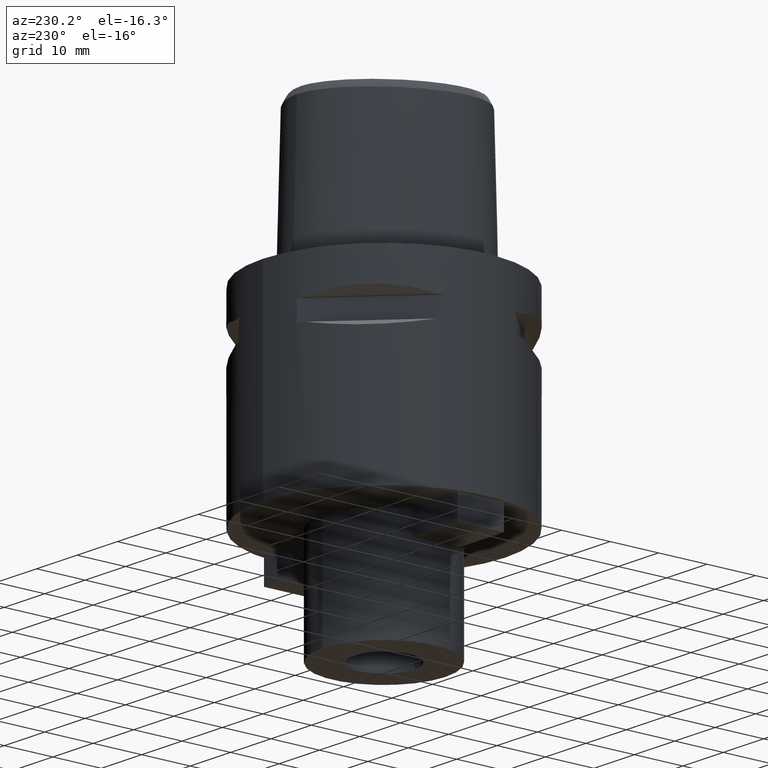
[diagram: clean part render]
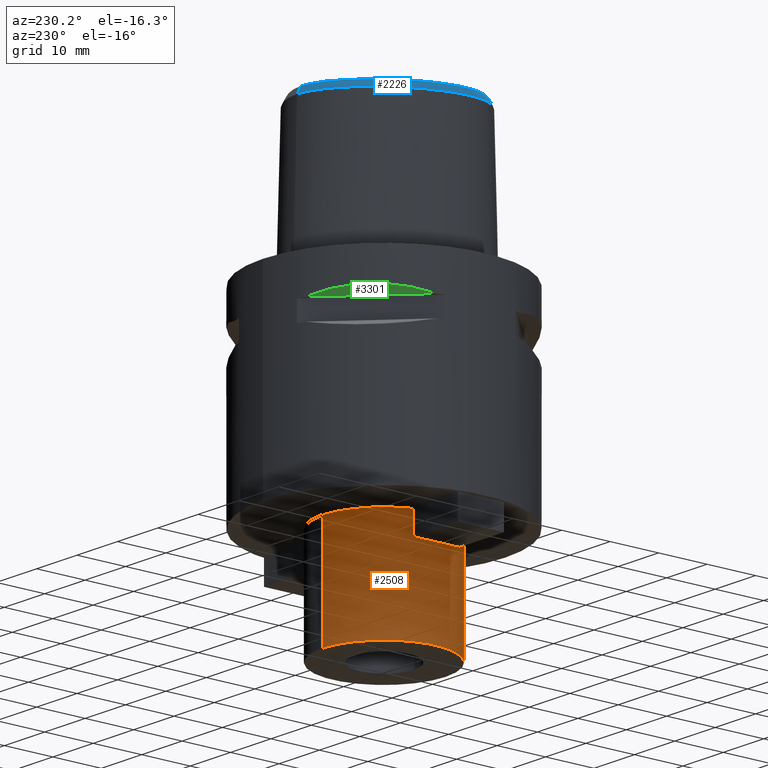
[diagram: same view with three faces highlighted in distinct colors, each labeled with its STEP entity id]
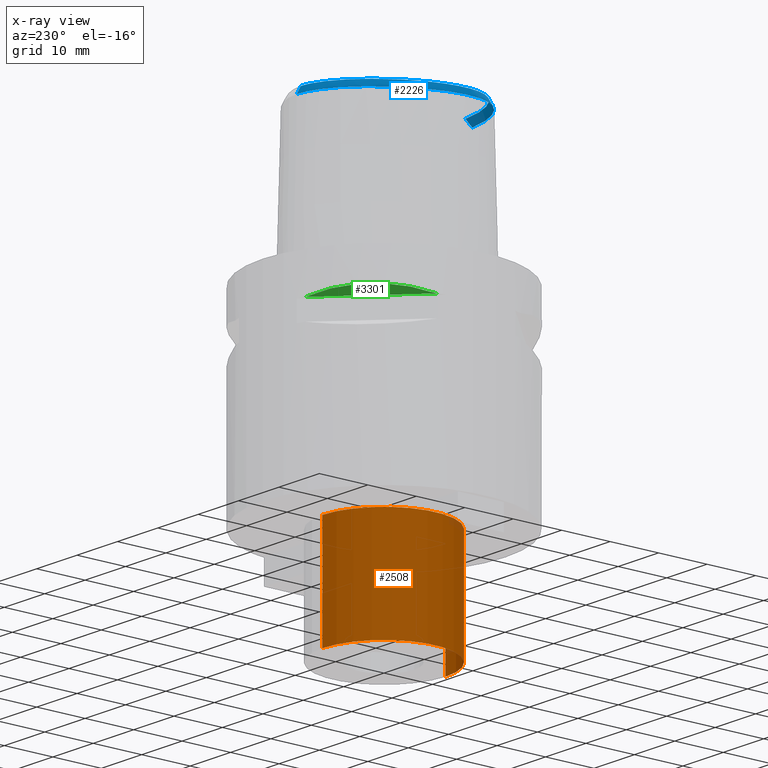
[diagram: x-ray of the same camera — body ghosted, the three highlighted faces saturated]
A machine part, auxiliary view with three faces highlighted in distinct colors.
The next image is the same camera in x-ray (body ghosted, the three faces saturated) — at least one of them is partly hidden behind the body in this view.
Their STEP definitions:

[orange] entity #2508 — the highlighted cylindrical surface (partial cylindrical patch) has radius 12.7 mm, axis along (0, 0, -1).
#522=CARTESIAN_POINT('',(0.E0,0.E0,-4.E1));
#523=DIRECTION('',(0.E0,0.E0,-1.E0));
#524=DIRECTION('',(0.E0,-1.E0,0.E0));
#525=AXIS2_PLACEMENT_3D('',#522,#523,#524);
#566=DIRECTION('',(0.E0,0.E0,-1.E0));
#567=VECTOR('',#566,2.2E1);
#568=CARTESIAN_POINT('',(0.E0,-1.27E1,-4.E1));
#569=LINE('',#568,#567);
#573=DIRECTION('',(0.E0,0.E0,-1.E0));
#574=VECTOR('',#573,2.2E1);
#575=CARTESIAN_POINT('',(0.E0,1.27E1,-4.E1));
#576=LINE('',#575,#574);
#588=CARTESIAN_POINT('',(0.E0,0.E0,-6.2E1));
#589=DIRECTION('',(0.E0,0.E0,1.E0));
#590=DIRECTION('',(0.E0,1.E0,0.E0));
#591=AXIS2_PLACEMENT_3D('',#588,#589,#590);
#1624=CARTESIAN_POINT('',(0.E0,-1.27E1,-4.E1));
#1625=CARTESIAN_POINT('',(0.E0,1.27E1,-4.E1));
#1626=VERTEX_POINT('',#1624);
#1627=VERTEX_POINT('',#1625);
#1644=CARTESIAN_POINT('',(0.E0,1.27E1,-6.2E1));
#1645=VERTEX_POINT('',#1644);
#1646=CARTESIAN_POINT('',(0.E0,-1.27E1,-6.2E1));
#1647=VERTEX_POINT('',#1646);
#2494=CARTESIAN_POINT('',(0.E0,0.E0,3.1E0));
#2495=DIRECTION('',(0.E0,0.E0,-1.E0));
#2496=DIRECTION('',(0.E0,-1.E0,0.E0));
#2497=AXIS2_PLACEMENT_3D('',#2494,#2495,#2496);
#2498=CYLINDRICAL_SURFACE('',#2497,1.27E1);
#2500=ORIENTED_EDGE('',*,*,#2499,.F.);
#2501=ORIENTED_EDGE('',*,*,#2467,.F.);
#2503=ORIENTED_EDGE('',*,*,#2502,.T.);
#2505=ORIENTED_EDGE('',*,*,#2504,.F.);
#2506=EDGE_LOOP('',(#2500,#2501,#2503,#2505));
#2507=FACE_OUTER_BOUND('',#2506,.F.);
#526=CIRCLE('',#525,1.27E1);
#592=CIRCLE('',#591,1.27E1);
#2467=EDGE_CURVE('',#1626,#1627,#526,.T.);
#2499=EDGE_CURVE('',#1627,#1645,#576,.T.);
#2502=EDGE_CURVE('',#1626,#1647,#569,.T.);
#2504=EDGE_CURVE('',#1645,#1647,#592,.T.);
#2508=ADVANCED_FACE('',(#2507),#2498,.T.);

[blue] entity #2226 — the highlighted face is a freeform B-spline surface patch.
#26=CARTESIAN_POINT('',(-2.406542353495E0,-1.480491723099E1,3.E1));
#27=CARTESIAN_POINT('',(-3.077877050545E0,-1.474412987460E1,3.E1));
#28=CARTESIAN_POINT('',(-4.346409671364E0,-1.457798202942E1,3.E1));
#29=CARTESIAN_POINT('',(-6.058080451681E0,-1.422197748778E1,3.E1));
#30=CARTESIAN_POINT('',(-7.497387844034E0,-1.381345399352E1,3.E1));
#31=CARTESIAN_POINT('',(-8.761918041401E0,-1.336117485593E1,3.E1));
#32=CARTESIAN_POINT('',(-9.910791545686E0,-1.285742767726E1,3.E1));
#33=CARTESIAN_POINT('',(-1.095803032272E1,-1.230298477491E1,3.E1));
#34=CARTESIAN_POINT('',(-1.191588550871E1,-1.169410889211E1,3.E1));
#35=CARTESIAN_POINT('',(-1.277871106677E1,-1.103307606468E1,3.E1));
#36=CARTESIAN_POINT('',(-1.351535275290E1,-1.034995031562E1,3.E1));
#37=CARTESIAN_POINT('',(-1.412991599111E1,-9.658017847749E0,3.E1));
#38=CARTESIAN_POINT('',(-1.463490572554E1,-8.962255318783E0,3.E1));
#39=CARTESIAN_POINT('',(-1.505180936336E1,-8.246223089930E0,3.E1));
#40=CARTESIAN_POINT('',(-1.540600817102E1,-7.466368653502E0,3.E1));
#41=CARTESIAN_POINT('',(-1.570109880252E1,-6.599287866008E0,3.E1));
#42=CARTESIAN_POINT('',(-1.593036326365E1,-5.627615350583E0,3.E1));
#43=CARTESIAN_POINT('',(-1.607900681505E1,-4.545844900234E0,3.E1));
#44=CARTESIAN_POINT('',(-1.613323717478E1,-3.416327187463E0,3.E1));
#45=CARTESIAN_POINT('',(-1.609622689745E1,-2.238207870912E0,3.E1));
#46=CARTESIAN_POINT('',(-1.596495895031E1,-9.970489340004E-1,3.E1));
#47=CARTESIAN_POINT('',(-1.573173242173E1,3.200539177967E-1,3.E1));
#48=CARTESIAN_POINT('',(-1.537490857223E1,1.760614091821E0,3.E1));
#49=CARTESIAN_POINT('',(-1.484615843465E1,3.396086717143E0,3.E1));
#50=CARTESIAN_POINT('',(-1.410656551523E1,5.201184011511E0,3.E1));
#51=CARTESIAN_POINT('',(-1.320217643696E1,6.999185940068E0,3.E1));
#52=CARTESIAN_POINT('',(-1.216232852075E1,8.730380125291E0,3.E1));
#53=CARTESIAN_POINT('',(-1.100018175405E1,1.036818300599E1,3.E1));
#54=CARTESIAN_POINT('',(-9.812117364274E0,1.179373903623E1,3.E1));
#55=CARTESIAN_POINT('',(-8.705627354046E0,1.293949473693E1,3.E1));
#56=CARTESIAN_POINT('',(-7.668856698037E0,1.387725456546E1,3.E1));
#57=CARTESIAN_POINT('',(-6.652804324409E0,1.467767715912E1,3.E1));
#58=CARTESIAN_POINT('',(-5.640984391123E0,1.536270269161E1,3.E1));
#59=CARTESIAN_POINT('',(-4.635084761944E0,1.593641245741E1,3.E1));
#60=CARTESIAN_POINT('',(-3.635341362188E0,1.640141196123E1,3.E1));
#61=CARTESIAN_POINT('',(-2.654914976228E0,1.675339404858E1,3.E1));
#62=CARTESIAN_POINT('',(-1.724445209999E0,1.698991710282E1,3.E1));
#63=CARTESIAN_POINT('',(-8.463595404158E-1,1.712413727407E1,3.E1));
#64=CARTESIAN_POINT('',(-2.782593634261E-1,1.715328888648E1,3.E1));
#65=CARTESIAN_POINT('',(-6.301949014215E-11,1.715328888648E1,3.E1));
#184=CARTESIAN_POINT('',(-2.406542353495E0,-1.480491723099E1,3.E1));
#185=CARTESIAN_POINT('',(-2.503413520705E0,-1.487788077640E1,2.985469957934E1));
#186=CARTESIAN_POINT('',(-2.688577477063E0,-1.503126525481E1,2.955056621377E1));
#187=CARTESIAN_POINT('',(-2.938927792076E0,-1.527883673709E1,2.906436153620E1));
#188=CARTESIAN_POINT('',(-3.094810231202E0,-1.546289540087E1,2.870661666782E1));
#189=CARTESIAN_POINT('',(-3.168920966623E0,-1.555911077539E1,2.852071192347E1));
#194=CARTESIAN_POINT('',(-3.168920966623E0,-1.555911077539E1,2.852071192347E1));
#195=CARTESIAN_POINT('',(-3.834802460624E0,-1.548149980056E1,2.852068259488E1));
#196=CARTESIAN_POINT('',(-5.098425956189E0,-1.528322129554E1,2.852072501408E1));
#197=CARTESIAN_POINT('',(-6.763182995587E0,-1.489564897571E1,2.852071506774E1));
#198=CARTESIAN_POINT('',(-8.199119874279E0,-1.445421074434E1,2.852072810493E1));
#199=CARTESIAN_POINT('',(-9.479985468784E0,-1.396290448038E1,2.852070886718E1));
#200=CARTESIAN_POINT('',(-1.065124091219E1,-1.341540490560E1,2.852072280462E1));
#201=CARTESIAN_POINT('',(-1.172848667658E1,-1.280901218796E1,2.852071529772E1));
#202=CARTESIAN_POINT('',(-1.271909405023E1,-1.213801322077E1,2.852072140095E1));
#203=CARTESIAN_POINT('',(-1.358663337046E1,-1.142906425604E1,2.852072076692E1));
#204=CARTESIAN_POINT('',(-1.432089152183E1,-1.070578211752E1,2.852072514129E1));
#205=CARTESIAN_POINT('',(-1.493679737650E1,-9.972043940927E0,2.852069036478E1));
#206=CARTESIAN_POINT('',(-1.544989155915E1,-9.225767726928E0,2.852073069360E1));
#207=CARTESIAN_POINT('',(-1.587932340565E1,-8.446243141603E0,2.852072616255E1));
#208=CARTESIAN_POINT('',(-1.624433460780E1,-7.597213457578E0,2.852070981507E1));
#209=CARTESIAN_POINT('',(-1.654527331392E1,-6.658898663135E0,2.852071596628E1));
#210=CARTESIAN_POINT('',(-1.677397756700E1,-5.620521684950E0,2.852072615388E1));
#211=CARTESIAN_POINT('',(-1.691819478479E1,-4.470824263012E0,2.852071639408E1));
#212=CARTESIAN_POINT('',(-1.696344648152E1,-3.257045715356E0,2.852071461131E1));
#213=CARTESIAN_POINT('',(-1.691062909386E1,-2.002801343658E0,2.852072363674E1));
#214=CARTESIAN_POINT('',(-1.675808310329E1,-6.888008413610E-1,
2.852071380688E1));
#215=CARTESIAN_POINT('',(-1.649855299857E1,6.977720721714E-1,2.852071998812E1));
#216=CARTESIAN_POINT('',(-1.610426973207E1,2.225424761353E0,2.852072063483E1));
#217=CARTESIAN_POINT('',(-1.552435244965E1,3.951979169115E0,2.852070441601E1));
#218=CARTESIAN_POINT('',(-1.474396806374E1,5.797556469969E0,2.852072799712E1));
#219=CARTESIAN_POINT('',(-1.380297306136E1,7.624260361627E0,2.852068650932E1));
#220=CARTESIAN_POINT('',(-1.272768153764E1,9.378428865776E0,2.852072747734E1));
#221=CARTESIAN_POINT('',(-1.154002983844E1,1.102437389658E1,2.852071909408E1));
#222=CARTESIAN_POINT('',(-1.032415640403E1,1.246392477114E1,2.852070864766E1));
#223=CARTESIAN_POINT('',(-9.178546848239E0,1.363544536689E1,2.852071992151E1));
#224=CARTESIAN_POINT('',(-8.100503338057E0,1.459779885486E1,2.852071927444E1));
#225=CARTESIAN_POINT('',(-7.037168641851E0,1.542369324304E1,2.852072717459E1));
#226=CARTESIAN_POINT('',(-5.970741987586E0,1.613437390494E1,2.852071577844E1));
#227=CARTESIAN_POINT('',(-4.895546031542E0,1.673553791691E1,2.852072334992E1));
#228=CARTESIAN_POINT('',(-3.827360564547E0,1.721887992541E1,2.852071733764E1));
#229=CARTESIAN_POINT('',(-2.794448666689E0,1.757718790997E1,2.852071374997E1));
#230=CARTESIAN_POINT('',(-1.819188312334E0,1.781665288435E1,2.852077149501E1));
#231=CARTESIAN_POINT('',(-8.849236946526E-1,1.795330503534E1,2.852059165093E1));
#232=CARTESIAN_POINT('',(-2.965007077566E-1,1.798202997910E1,2.852071728568E1));
#233=CARTESIAN_POINT('',(-2.785048470627E-11,1.798202997910E1,
2.852071728569E1));
#238=DIRECTION('',(-2.074122626242E-11,-4.887572537803E-1,8.724198226067E-1));
#239=VECTOR('',#238,1.695608783729E0);
#240=CARTESIAN_POINT('',(-2.785048470627E-11,1.798202997910E1,
2.852071728569E1));
#241=LINE('',#240,#239);
#245=CARTESIAN_POINT('',(-3.168920966623E0,-1.555911077539E1,2.852071192347E1));
#1543=CARTESIAN_POINT('',(-2.406542353497E0,-1.480491723099E1,3.E1));
#1545=VERTEX_POINT('',#1543);
#1546=VERTEX_POINT('',#65);
#1555=VERTEX_POINT('',#245);
#1556=CARTESIAN_POINT('',(-2.785048470627E-11,1.798202997910E1,
2.852071728569E1));
#1557=VERTEX_POINT('',#1556);
#1994=CARTESIAN_POINT('',(4.596753303530E-1,1.707290873920E1,3.012174121022E1));
#1995=CARTESIAN_POINT('',(4.774139178673E-1,1.739413187838E1,2.954746463267E1));
#1996=CARTESIAN_POINT('',(4.951525053815E-1,1.771535501756E1,2.897318805512E1));
#1997=CARTESIAN_POINT('',(5.128910928957E-1,1.803657815674E1,2.839891147757E1));
#1998=CARTESIAN_POINT('',(3.026153698089E-1,1.708096174965E1,3.012174118422E1));
#1999=CARTESIAN_POINT('',(3.144960619652E-1,1.740252275242E1,2.954746472932E1));
#2000=CARTESIAN_POINT('',(3.263767541215E-1,1.772408375520E1,2.897318827442E1));
#2001=CARTESIAN_POINT('',(3.382574462778E-1,1.804564475797E1,2.839891181952E1));
#2002=CARTESIAN_POINT('',(-4.069228935508E-2,1.709027162535E1,
3.012174116556E1));
#2003=CARTESIAN_POINT('',(-4.220029757135E-2,1.741220924809E1,
2.954746479873E1));
#2004=CARTESIAN_POINT('',(-4.370830578761E-2,1.773414687083E1,
2.897318843190E1));
#2005=CARTESIAN_POINT('',(-4.521631400387E-2,1.805608449357E1,
2.839891206507E1));
#2006=CARTESIAN_POINT('',(-5.631291041104E-1,1.707204226745E1,
3.012174120212E1));
#2007=CARTESIAN_POINT('',(-5.856382512652E-1,1.739324244317E1,
2.954746466283E1));
#2008=CARTESIAN_POINT('',(-6.081473984200E-1,1.771444261889E1,
2.897318812355E1));
#2009=CARTESIAN_POINT('',(-6.306565455748E-1,1.803564279461E1,
2.839891158427E1));
#2010=CARTESIAN_POINT('',(-1.150697112783E0,1.701102340343E1,3.012174120694E1));
#2011=CARTESIAN_POINT('',(-1.195295051208E0,1.732989938115E1,2.954746464487E1));
#2012=CARTESIAN_POINT('',(-1.239892989634E0,1.764877535887E1,2.897318808279E1));
#2013=CARTESIAN_POINT('',(-1.284490928059E0,1.796765133659E1,2.839891152072E1));
#2014=CARTESIAN_POINT('',(-1.758849615155E0,1.690516310659E1,3.012174116139E1));
#2015=CARTESIAN_POINT('',(-1.825036346383E0,1.722025945916E1,2.954746481422E1));
#2016=CARTESIAN_POINT('',(-1.891223077611E0,1.753535581172E1,2.897318846705E1));
#2017=CARTESIAN_POINT('',(-1.957409808839E0,1.785045216428E1,2.839891211989E1));
#2018=CARTESIAN_POINT('',(-2.393174015140E0,1.675020975820E1,3.012174120002E1));
#2019=CARTESIAN_POINT('',(-2.480286309887E0,1.706016471068E1,2.954746467062E1));
#2020=CARTESIAN_POINT('',(-2.567398604634E0,1.737011966316E1,2.897318814123E1));
#2021=CARTESIAN_POINT('',(-2.654510899380E0,1.768007461564E1,2.839891161184E1));
#2022=CARTESIAN_POINT('',(-3.054436895721E0,1.654136122386E1,3.012174126222E1));
#2023=CARTESIAN_POINT('',(-3.161711073770E0,1.684491932724E1,2.954746443944E1));
#2024=CARTESIAN_POINT('',(-3.268985251818E0,1.714847743063E1,2.897318761665E1));
#2025=CARTESIAN_POINT('',(-3.376259429867E0,1.745203553402E1,2.839891079387E1));
#2026=CARTESIAN_POINT('',(-3.745070615544E0,1.627276273461E1,3.012174111493E1));
#2027=CARTESIAN_POINT('',(-3.871679354115E0,1.656876825589E1,2.954746498689E1));
#2028=CARTESIAN_POINT('',(-3.998288092687E0,1.686477377718E1,2.897318885884E1));
#2029=CARTESIAN_POINT('',(-4.124896831258E0,1.716077929846E1,2.839891273079E1));
#2030=CARTESIAN_POINT('',(-4.467927516314E0,1.593721150381E1,3.012174080170E1));
#2031=CARTESIAN_POINT('',(-4.612901984289E0,1.622465683992E1,2.954746615123E1));
#2032=CARTESIAN_POINT('',(-4.757876452263E0,1.651210217603E1,2.897319150076E1));
#2033=CARTESIAN_POINT('',(-4.902850920238E0,1.679954751214E1,2.839891685028E1));
#2034=CARTESIAN_POINT('',(-5.223450049373E0,1.552756331095E1,3.012174070623E1));
#2035=CARTESIAN_POINT('',(-5.385821204270E0,1.580554184873E1,2.954746650612E1));
#2036=CARTESIAN_POINT('',(-5.548192359167E0,1.608352038650E1,2.897319230601E1));
#2037=CARTESIAN_POINT('',(-5.710563514063E0,1.636149892428E1,2.839891810590E1));
#2038=CARTESIAN_POINT('',(-6.009473619387E0,1.503725066274E1,3.012174089696E1));
#2039=CARTESIAN_POINT('',(-6.188245088997E0,1.530496579604E1,2.954746579716E1));
#2040=CARTESIAN_POINT('',(-6.367016558606E0,1.557268092935E1,2.897319069736E1));
#2041=CARTESIAN_POINT('',(-6.545788028216E0,1.584039606265E1,2.839891559755E1));
#2042=CARTESIAN_POINT('',(-6.821559281424E0,1.446093764649E1,3.012174123239E1));
#2043=CARTESIAN_POINT('',(-7.015739902879E0,1.471768529108E1,2.954746455029E1));
#2044=CARTESIAN_POINT('',(-7.209920524334E0,1.497443293568E1,2.897318786818E1));
#2045=CARTESIAN_POINT('',(-7.404101145789E0,1.523118058027E1,2.839891118608E1));
#2046=CARTESIAN_POINT('',(-7.656419692852E0,1.379218190464E1,3.012174114488E1));
#2047=CARTESIAN_POINT('',(-7.865029120334E0,1.403733980257E1,2.954746487559E1));
#2048=CARTESIAN_POINT('',(-8.073638547816E0,1.428249770050E1,2.897318860631E1));
#2049=CARTESIAN_POINT('',(-8.282247975297E0,1.452765559843E1,2.839891233702E1));
#2050=CARTESIAN_POINT('',(-8.509857714550E0,1.302493248738E1,3.012174099115E1));
#2051=CARTESIAN_POINT('',(-8.731900566786E0,1.325798283095E1,2.954746544702E1));
#2052=CARTESIAN_POINT('',(-8.953943419022E0,1.349103317453E1,2.897318990290E1));
#2053=CARTESIAN_POINT('',(-9.175986271259E0,1.372408351810E1,2.839891435877E1));
#2054=CARTESIAN_POINT('',(-9.371134475511E0,1.215903522635E1,3.012174105077E1));
#2055=CARTESIAN_POINT('',(-9.605672010648E0,1.237949842015E1,2.954746522539E1));
#2056=CARTESIAN_POINT('',(-9.840209545784E0,1.259996161394E1,2.89731894E1));
#2057=CARTESIAN_POINT('',(-1.007474708092E1,1.282042480774E1,2.839891357462E1));
#2058=CARTESIAN_POINT('',(-1.022689792850E1,1.119881426904E1,3.012174122484E1));
#2059=CARTESIAN_POINT('',(-1.047303815581E1,1.140623608952E1,2.954746457833E1));
#2060=CARTESIAN_POINT('',(-1.071917838311E1,1.161365791E1,2.897318793181E1));
#2061=CARTESIAN_POINT('',(-1.096531861042E1,1.182107973048E1,2.839891128529E1));
#2062=CARTESIAN_POINT('',(-1.106454927481E1,1.015004473038E1,3.012174113023E1));
#2063=CARTESIAN_POINT('',(-1.132142245246E1,1.034401018292E1,2.954746493007E1));
#2064=CARTESIAN_POINT('',(-1.157829563011E1,1.053797563545E1,2.897318872991E1));
#2065=CARTESIAN_POINT('',(-1.183516880776E1,1.073194108799E1,2.839891252975E1));
#2066=CARTESIAN_POINT('',(-1.187058088926E1,9.022365854060E0,3.012174109090E1));
#2067=CARTESIAN_POINT('',(-1.213735845165E1,9.202461805293E0,2.954746507624E1));
#2068=CARTESIAN_POINT('',(-1.240413601404E1,9.382557756526E0,2.897318906158E1));
#2069=CARTESIAN_POINT('',(-1.267091357643E1,9.562653707759E0,2.839891304693E1));
#2070=CARTESIAN_POINT('',(-1.262799235685E1,7.834420134899E0,3.012174118525E1));
#2071=CARTESIAN_POINT('',(-1.290387784994E1,8.000226388036E0,2.954746472552E1));
#2072=CARTESIAN_POINT('',(-1.317976334303E1,8.166032641173E0,2.897318826579E1));
#2073=CARTESIAN_POINT('',(-1.345564883611E1,8.331838894310E0,2.839891180606E1));
#2074=CARTESIAN_POINT('',(-1.332414300750E1,6.603683737885E0,3.012174115833E1));
#2075=CARTESIAN_POINT('',(-1.360838060289E1,6.754725551983E0,2.954746482559E1));
#2076=CARTESIAN_POINT('',(-1.389261819828E1,6.905767366081E0,2.897318849285E1));
#2077=CARTESIAN_POINT('',(-1.417685579367E1,7.056809180179E0,2.839891216010E1));
#2078=CARTESIAN_POINT('',(-1.394972811283E1,5.347101874405E0,3.012174111119E1));
#2079=CARTESIAN_POINT('',(-1.424153002064E1,5.482957616969E0,2.954746500082E1));
#2080=CARTESIAN_POINT('',(-1.453333192846E1,5.618813359533E0,2.897318889045E1));
#2081=CARTESIAN_POINT('',(-1.482513383627E1,5.754669102098E0,2.839891278008E1));
#2082=CARTESIAN_POINT('',(-1.449567921014E1,4.086944252806E0,3.012174119940E1));
#2083=CARTESIAN_POINT('',(-1.479428284036E1,4.207123896376E0,2.954746467293E1));
#2084=CARTESIAN_POINT('',(-1.509288647058E1,4.327303539945E0,2.897318814645E1));
#2085=CARTESIAN_POINT('',(-1.539149010080E1,4.447483183515E0,2.839891161998E1));
#2086=CARTESIAN_POINT('',(-1.495641455412E1,2.845096594503E0,3.012174118524E1));
#2087=CARTESIAN_POINT('',(-1.526104860954E1,2.949057649218E0,2.954746472557E1));
#2088=CARTESIAN_POINT('',(-1.556568266495E1,3.053018703933E0,2.897318826590E1));
#2089=CARTESIAN_POINT('',(-1.587031672037E1,3.156979758648E0,2.839891180623E1));
#2090=CARTESIAN_POINT('',(-1.533159338678E1,1.636586221295E0,3.012174092206E1));
#2091=CARTESIAN_POINT('',(-1.564144117846E1,1.723806069539E0,2.954746570388E1));
#2092=CARTESIAN_POINT('',(-1.595128897015E1,1.811025917782E0,2.897319048570E1));
#2093=CARTESIAN_POINT('',(-1.626113676184E1,1.898245766026E0,2.839891526752E1));
#2094=CARTESIAN_POINT('',(-1.562318201496E1,4.748759600714E-1,
3.012174088869E1));
#2095=CARTESIAN_POINT('',(-1.593739403139E1,5.447882615915E-1,
2.954746582789E1));
#2096=CARTESIAN_POINT('',(-1.625160604781E1,6.147005631116E-1,
2.897319076710E1));
#2097=CARTESIAN_POINT('',(-1.656581806424E1,6.846128646317E-1,
2.839891570630E1));
#2098=CARTESIAN_POINT('',(-1.583489181170E1,-6.272796931962E-1,
3.012174110576E1));
#2099=CARTESIAN_POINT('',(-1.615256193069E1,-5.752443945356E-1,
2.954746502098E1));
#2100=CARTESIAN_POINT('',(-1.647023204968E1,-5.232090958750E-1,
2.897318893621E1));
#2101=CARTESIAN_POINT('',(-1.678790216867E1,-4.711737972144E-1,
2.839891285143E1));
#2102=CARTESIAN_POINT('',(-1.597296513175E1,-1.663611031542E0,
3.012174122726E1));
#2103=CARTESIAN_POINT('',(-1.629312388751E1,-1.630061948552E0,
2.954746456935E1));
#2104=CARTESIAN_POINT('',(-1.661328264328E1,-1.596512865561E0,
2.897318791144E1));
#2105=CARTESIAN_POINT('',(-1.693344139904E1,-1.562963782571E0,
2.839891125353E1));
#2106=CARTESIAN_POINT('',(-1.604466556182E1,-2.632992999069E0,
3.012174118797E1));
#2107=CARTESIAN_POINT('',(-1.636625659421E1,-2.618437660414E0,
2.954746471541E1));
#2108=CARTESIAN_POINT('',(-1.668784762660E1,-2.603882321760E0,
2.897318824285E1));
#2109=CARTESIAN_POINT('',(-1.700943865899E1,-2.589326983106E0,
2.839891177029E1));
#2110=CARTESIAN_POINT('',(-1.605719490166E1,-3.534824318722E0,
3.012174116775E1));
#2111=CARTESIAN_POINT('',(-1.637908630631E1,-3.539790214621E0,
2.954746479060E1));
#2112=CARTESIAN_POINT('',(-1.670097771095E1,-3.544756110521E0,
2.897318841346E1));
#2113=CARTESIAN_POINT('',(-1.702286911560E1,-3.549722006420E0,
2.839891203631E1));
#2114=CARTESIAN_POINT('',(-1.601746527714E1,-4.371042181798E0,
3.012174111104E1));
#2115=CARTESIAN_POINT('',(-1.633843909421E1,-4.395949793531E0,
2.954746500138E1));
#2116=CARTESIAN_POINT('',(-1.665941291128E1,-4.420857405263E0,
2.897318889172E1));
#2117=CARTESIAN_POINT('',(-1.698038672835E1,-4.445765016995E0,
2.839891278206E1));
#2118=CARTESIAN_POINT('',(-1.593191859390E1,-5.144251202098E0,
3.012174117989E1));
#2119=CARTESIAN_POINT('',(-1.625067730220E1,-5.189460119846E0,
2.954746474548E1));
#2120=CARTESIAN_POINT('',(-1.656943601051E1,-5.234669037594E0,
2.897318831107E1));
#2121=CARTESIAN_POINT('',(-1.688819471881E1,-5.279877955342E0,
2.839891187666E1));
#2122=CARTESIAN_POINT('',(-1.580619518342E1,-5.858168201496E0,
3.012174120071E1));
#2123=CARTESIAN_POINT('',(-1.612136249490E1,-5.923944886227E0,
2.954746466805E1));
#2124=CARTESIAN_POINT('',(-1.643652980638E1,-5.989721570959E0,
2.897318813539E1));
#2125=CARTESIAN_POINT('',(-1.675169711786E1,-6.055498255690E0,
2.839891160272E1));
#2126=CARTESIAN_POINT('',(-1.564490450876E1,-6.517974327113E0,
3.012174119299E1));
#2127=CARTESIAN_POINT('',(-1.595504422286E1,-6.604438029244E0,
2.954746469673E1));
#2128=CARTESIAN_POINT('',(-1.626518393696E1,-6.690901731374E0,
2.897318820047E1));
#2129=CARTESIAN_POINT('',(-1.657532365105E1,-6.777365433505E0,
2.839891170421E1));
#2130=CARTESIAN_POINT('',(-1.545187220395E1,-7.128142189735E0,
3.012174116587E1));
#2131=CARTESIAN_POINT('',(-1.575549720293E1,-7.235288044432E0,
2.954746479755E1));
#2132=CARTESIAN_POINT('',(-1.605912220191E1,-7.342433899129E0,
2.897318842924E1));
#2133=CARTESIAN_POINT('',(-1.636274720089E1,-7.449579753826E0,
2.839891206092E1));
#2134=CARTESIAN_POINT('',(-1.522963221520E1,-7.694036026576E0,
3.012174115822E1));
#2135=CARTESIAN_POINT('',(-1.552522665138E1,-7.821689687557E0,
2.954746482598E1));
#2136=CARTESIAN_POINT('',(-1.582082108756E1,-7.949343348539E0,
2.897318849373E1));
#2137=CARTESIAN_POINT('',(-1.611641552374E1,-8.076997009521E0,
2.839891216148E1));
#2138=CARTESIAN_POINT('',(-1.498085471776E1,-8.218507722159E0,
3.012174121260E1));
#2139=CARTESIAN_POINT('',(-1.526692871953E1,-8.366293204325E0,
2.954746462389E1));
#2140=CARTESIAN_POINT('',(-1.555300272130E1,-8.514078686491E0,
2.897318803518E1));
#2141=CARTESIAN_POINT('',(-1.583907672307E1,-8.661864168657E0,
2.839891144647E1));
#2142=CARTESIAN_POINT('',(-1.470494315393E1,-8.709137072569E0,
3.012174117665E1));
#2143=CARTESIAN_POINT('',(-1.497985344484E1,-8.876781081418E0,
2.954746475751E1));
#2144=CARTESIAN_POINT('',(-1.525476373575E1,-9.044425090266E0,
2.897318833837E1));
#2145=CARTESIAN_POINT('',(-1.552967402666E1,-9.212069099115E0,
2.839891191923E1));
#2146=CARTESIAN_POINT('',(-1.439045264702E1,-9.187173922982E0,
3.012174119485E1));
#2147=CARTESIAN_POINT('',(-1.465303741444E1,-9.373513365253E0,
2.954746468983E1));
#2148=CARTESIAN_POINT('',(-1.491562218186E1,-9.559852807523E0,
2.897318818482E1));
#2149=CARTESIAN_POINT('',(-1.517820694927E1,-9.746192249794E0,
2.839891167981E1));
#2150=CARTESIAN_POINT('',(-1.402770212656E1,-9.663645224193E0,
3.012174114682E1));
#2151=CARTESIAN_POINT('',(-1.427687817924E1,-9.867559423504E0,
2.954746486836E1));
#2152=CARTESIAN_POINT('',(-1.452605423192E1,-1.007147362282E1,
2.897318858989E1));
#2153=CARTESIAN_POINT('',(-1.477523028460E1,-1.027538782213E1,
2.839891231143E1));
#2154=CARTESIAN_POINT('',(-1.361361423546E1,-1.013680918533E1,
3.012174119125E1));
#2155=CARTESIAN_POINT('',(-1.384841128149E1,-1.035711551699E1,
2.954746470321E1));
#2156=CARTESIAN_POINT('',(-1.408320832753E1,-1.057742184866E1,
2.897318821516E1));
#2157=CARTESIAN_POINT('',(-1.431800537357E1,-1.079772818032E1,
2.839891172712E1));
#2158=CARTESIAN_POINT('',(-1.314260170428E1,-1.060732236070E1,
3.012174119660E1));
#2159=CARTESIAN_POINT('',(-1.336222512195E1,-1.084274614236E1,
2.954746468335E1));
#2160=CARTESIAN_POINT('',(-1.358184853962E1,-1.107816992401E1,
2.897318817011E1));
#2161=CARTESIAN_POINT('',(-1.380147195729E1,-1.131359370567E1,
2.839891165686E1));
#2162=CARTESIAN_POINT('',(-1.260888799215E1,-1.107450735501E1,
3.012174119698E1));
#2163=CARTESIAN_POINT('',(-1.281268096524E1,-1.132374906105E1,
2.954746468193E1));
#2164=CARTESIAN_POINT('',(-1.301647393833E1,-1.157299076709E1,
2.897318816689E1));
#2165=CARTESIAN_POINT('',(-1.322026691142E1,-1.182223247313E1,
2.839891165184E1));
#2166=CARTESIAN_POINT('',(-1.200597331606E1,-1.153710878968E1,
3.012174112512E1));
#2167=CARTESIAN_POINT('',(-1.219342116528E1,-1.179885283139E1,
2.954746494905E1));
#2168=CARTESIAN_POINT('',(-1.238086901449E1,-1.206059687309E1,
2.897318877298E1));
#2169=CARTESIAN_POINT('',(-1.256831686370E1,-1.232234091480E1,
2.839891259691E1));
#2170=CARTESIAN_POINT('',(-1.132731312376E1,-1.199277205530E1,
3.012174113958E1));
#2171=CARTESIAN_POINT('',(-1.149805063943E1,-1.226569944616E1,
2.954746489526E1));
#2172=CARTESIAN_POINT('',(-1.166878815510E1,-1.253862683702E1,
2.897318865095E1));
#2173=CARTESIAN_POINT('',(-1.183952567077E1,-1.281155422788E1,
2.839891240663E1));
#2174=CARTESIAN_POINT('',(-1.056761985400E1,-1.243736058070E1,
3.012174119180E1));
#2175=CARTESIAN_POINT('',(-1.072136158590E1,-1.272019991037E1,
2.954746470118E1));
#2176=CARTESIAN_POINT('',(-1.087510331779E1,-1.300303924004E1,
2.897318821055E1));
#2177=CARTESIAN_POINT('',(-1.102884504968E1,-1.328587856971E1,
2.839891171993E1));
#2178=CARTESIAN_POINT('',(-9.721208718754E0,-1.286631341601E1,
3.012174120544E1));
#2179=CARTESIAN_POINT('',(-9.857818293862E0,-1.315780390914E1,
2.954746465048E1));
#2180=CARTESIAN_POINT('',(-9.994427868970E0,-1.344929440227E1,
2.897318809553E1));
#2181=CARTESIAN_POINT('',(-1.013103744408E1,-1.374078489539E1,
2.839891154057E1));
#2182=CARTESIAN_POINT('',(-8.784679828762E0,-1.327340547199E1,
3.012174118466E1));
#2183=CARTESIAN_POINT('',(-8.904051631381E0,-1.357236030710E1,
2.954746472772E1));
#2184=CARTESIAN_POINT('',(-9.023423434E0,-1.387131514221E1,2.897318827077E1));
#2185=CARTESIAN_POINT('',(-9.142795236618E0,-1.417026997732E1,
2.839891181382E1));
#2186=CARTESIAN_POINT('',(-7.755083054662E0,-1.365191773875E1,
3.012174094324E1));
#2187=CARTESIAN_POINT('',(-7.857231258816E0,-1.395717860078E1,
2.954746562513E1));
#2188=CARTESIAN_POINT('',(-7.959379462969E0,-1.426243946281E1,
2.897319030702E1));
#2189=CARTESIAN_POINT('',(-8.061527667122E0,-1.456770032484E1,
2.839891498891E1));
#2190=CARTESIAN_POINT('',(-6.632232735788E0,-1.399410593829E1,
3.012174088999E1));
#2191=CARTESIAN_POINT('',(-6.717192277486E0,-1.430458302600E1,
2.954746582308E1));
#2192=CARTESIAN_POINT('',(-6.802151819183E0,-1.461506011372E1,
2.897319075617E1));
#2193=CARTESIAN_POINT('',(-6.887111360880E0,-1.492553720143E1,
2.839891568927E1));
#2194=CARTESIAN_POINT('',(-5.423495473935E0,-1.429037437412E1,
3.012174110343E1));
#2195=CARTESIAN_POINT('',(-5.491331647796E0,-1.460503140816E1,
2.954746502966E1));
#2196=CARTESIAN_POINT('',(-5.559167821658E0,-1.491968844220E1,
2.897318895589E1));
#2197=CARTESIAN_POINT('',(-5.627003995519E0,-1.523434547624E1,
2.839891288212E1));
#2198=CARTESIAN_POINT('',(-4.139737674339E0,-1.453179102597E1,
3.012174122795E1));
#2199=CARTESIAN_POINT('',(-4.190487197149E0,-1.484964729047E1,
2.954746456680E1));
#2200=CARTESIAN_POINT('',(-4.241236719959E0,-1.516750355497E1,
2.897318790564E1));
#2201=CARTESIAN_POINT('',(-4.291986242768E0,-1.548535981947E1,
2.839891124448E1));
#2202=CARTESIAN_POINT('',(-3.115257336769E0,-1.466788023576E1,
3.012174113862E1));
#2203=CARTESIAN_POINT('',(-3.153085565621E0,-1.498744499930E1,
2.954746489887E1));
#2204=CARTESIAN_POINT('',(-3.190913794472E0,-1.530700976284E1,
2.897318865911E1));
#2205=CARTESIAN_POINT('',(-3.228742023324E0,-1.562657452638E1,
2.839891241936E1));
#2206=CARTESIAN_POINT('',(-2.369856394913E0,-1.474094677573E1,
3.012174111768E1));
#2207=CARTESIAN_POINT('',(-2.398492153099E0,-1.506141251203E1,
2.954746497671E1));
#2208=CARTESIAN_POINT('',(-2.427127911286E0,-1.538187824834E1,
2.897318883574E1));
#2209=CARTESIAN_POINT('',(-2.455763669473E0,-1.570234398465E1,
2.839891269476E1));
#2210=CARTESIAN_POINT('',(-2.080277565048E0,-1.476449973770E1,
3.012174111697E1));
#2211=CARTESIAN_POINT('',(-2.105375176122E0,-1.508525311063E1,
2.954746497933E1));
#2212=CARTESIAN_POINT('',(-2.130472787196E0,-1.540600648356E1,
2.897318884169E1));
#2213=CARTESIAN_POINT('',(-2.155570398269E0,-1.572675985650E1,
2.839891270405E1));
#2214=CARTESIAN_POINT('',(-1.919385220371E0,-1.477610378155E1,
3.012174111856E1));
#2215=CARTESIAN_POINT('',(-1.942524897693E0,-1.509699833870E1,
2.954746497341E1));
#2216=CARTESIAN_POINT('',(-1.965664575016E0,-1.541789289584E1,
2.897318882826E1));
#2217=CARTESIAN_POINT('',(-1.988804252338E0,-1.573878745299E1,
2.839891268312E1));
#2218=B_SPLINE_SURFACE_WITH_KNOTS('',3,3,((#1994,#1995,#1996,#1997),(#1998,
#1999,#2000,#2001),(#2002,#2003,#2004,#2005),(#2006,#2007,#2008,#2009),(#2010,
#2011,#2012,#2013),(#2014,#2015,#2016,#2017),(#2018,#2019,#2020,#2021),(#2022,
#2023,#2024,#2025),(#2026,#2027,#2028,#2029),(#2030,#2031,#2032,#2033),(#2034,
#2035,#2036,#2037),(#2038,#2039,#2040,#2041),(#2042,#2043,#2044,#2045),(#2046,
#2047,#2048,#2049),(#2050,#2051,#2052,#2053),(#2054,#2055,#2056,#2057),(#2058,
#2059,#2060,#2061),(#2062,#2063,#2064,#2065),(#2066,#2067,#2068,#2069),(#2070,
#2071,#2072,#2073),(#2074,#2075,#2076,#2077),(#2078,#2079,#2080,#2081),(#2082,
#2083,#2084,#2085),(#2086,#2087,#2088,#2089),(#2090,#2091,#2092,#2093),(#2094,
#2095,#2096,#2097),(#2098,#2099,#2100,#2101),(#2102,#2103,#2104,#2105),(#2106,
#2107,#2108,#2109),(#2110,#2111,#2112,#2113),(#2114,#2115,#2116,#2117),(#2118,
#2119,#2120,#2121),(#2122,#2123,#2124,#2125),(#2126,#2127,#2128,#2129),(#2130,
#2131,#2132,#2133),(#2134,#2135,#2136,#2137),(#2138,#2139,#2140,#2141),(#2142,
#2143,#2144,#2145),(#2146,#2147,#2148,#2149),(#2150,#2151,#2152,#2153),(#2154,
#2155,#2156,#2157),(#2158,#2159,#2160,#2161),(#2162,#2163,#2164,#2165),(#2166,
#2167,#2168,#2169),(#2170,#2171,#2172,#2173),(#2174,#2175,#2176,#2177),(#2178,
#2179,#2180,#2181),(#2182,#2183,#2184,#2185),(#2186,#2187,#2188,#2189),(#2190,
#2191,#2192,#2193),(#2194,#2195,#2196,#2197),(#2198,#2199,#2200,#2201),(#2202,
#2203,#2204,#2205),(#2206,#2207,#2208,#2209),(#2210,#2211,#2212,#2213),(#2214,
#2215,#2216,#2217)),.UNSPECIFIED.,.F.,.F.,.F.,(4,1,1,1,1,1,1,1,1,1,1,1,1,1,1,1,
1,1,1,1,1,1,1,1,1,1,1,1,1,1,1,1,1,1,1,1,1,1,1,1,1,1,1,1,1,1,1,1,1,1,1,1,1,4),(4,
4),(-1.581534407490E-2,0.E0,1.988866185211E-2,3.977732370550E-2,
5.966598555889E-2,7.955464741228E-2,9.944330926567E-2,1.193319711190E-1,
1.392206329725E-1,1.591092948259E-1,1.789979566792E-1,1.988866185326E-1,
2.187752803860E-1,2.386639422394E-1,2.585526040928E-1,2.784412659462E-1,
2.983299277995E-1,3.182185896530E-1,3.381072515064E-1,3.579959133597E-1,
3.778845752131E-1,3.977732370665E-1,4.176618989200E-1,4.375505607733E-1,
4.574392226267E-1,4.773278844801E-1,4.972165463334E-1,5.171052081869E-1,
5.369938700403E-1,5.568825318936E-1,5.767711937470E-1,5.966598556005E-1,
6.165485174538E-1,6.364371793072E-1,6.563258411606E-1,6.762145030140E-1,
6.961031648674E-1,7.159918267208E-1,7.358804885742E-1,7.557691504275E-1,
7.756578122809E-1,7.955464741344E-1,8.154351359877E-1,8.353237978411E-1,
8.552124596945E-1,8.751011215478E-1,8.949897834013E-1,9.148784452547E-1,
9.347671071081E-1,9.546557689614E-1,9.745444308149E-1,9.944330926683E-1,1.E0,
1.006911813929E0),(-5.990091274492E-2,1.059936932200E0),.UNSPECIFIED.);
#2219=ORIENTED_EDGE('',*,*,#1755,.T.);
#2221=ORIENTED_EDGE('',*,*,#2220,.T.);
#2222=ORIENTED_EDGE('',*,*,#1987,.T.);
#2223=ORIENTED_EDGE('',*,*,#1728,.F.);
#2224=EDGE_LOOP('',(#2219,#2221,#2222,#2223));
#2225=FACE_OUTER_BOUND('',#2224,.F.);
#66=B_SPLINE_CURVE_WITH_KNOTS('',3,(#26,#27,#28,#29,#30,#31,#32,#33,#34,#35,#36,
#37,#38,#39,#40,#41,#42,#43,#44,#45,#46,#47,#48,#49,#50,#51,#52,#53,#54,#55,#56,
#57,#58,#59,#60,#61,#62,#63,#64,#65),.UNSPECIFIED.,.F.,.F.,(4,1,1,1,1,1,1,1,1,1,
1,1,1,1,1,1,1,1,1,1,1,1,1,1,1,1,1,1,1,1,1,1,1,1,1,1,1,4),(0.E0,
2.702702702703E-2,5.405405405405E-2,8.108108108108E-2,1.081081081081E-1,
1.351351351351E-1,1.621621621622E-1,1.891891891892E-1,2.162162162162E-1,
2.432432432432E-1,2.702702702703E-1,2.972972972973E-1,3.243243243243E-1,
3.513513513514E-1,3.783783783784E-1,4.054054054054E-1,4.324324324324E-1,
4.594594594595E-1,4.864864864865E-1,5.135135135135E-1,5.405405405405E-1,
5.675675675676E-1,5.945945945946E-1,6.216216216216E-1,6.486486486486E-1,
6.756756756757E-1,7.027027027027E-1,7.297297297297E-1,7.567567567568E-1,
7.837837837838E-1,8.108108108108E-1,8.378378378378E-1,8.648648648649E-1,
8.918918918919E-1,9.189189189189E-1,9.459459459459E-1,9.729729729730E-1,1.E0),
.UNSPECIFIED.);
#190=B_SPLINE_CURVE_WITH_KNOTS('',3,(#184,#185,#186,#187,#188,#189),
.UNSPECIFIED.,.F.,.F.,(4,1,1,4),(0.E0,3.333333333333E-1,6.666666666667E-1,1.E0),
.UNSPECIFIED.);
#234=B_SPLINE_CURVE_WITH_KNOTS('',3,(#194,#195,#196,#197,#198,#199,#200,#201,
#202,#203,#204,#205,#206,#207,#208,#209,#210,#211,#212,#213,#214,#215,#216,#217,
#218,#219,#220,#221,#222,#223,#224,#225,#226,#227,#228,#229,#230,#231,#232,
#233),.UNSPECIFIED.,.F.,.F.,(4,1,1,1,1,1,1,1,1,1,1,1,1,1,1,1,1,1,1,1,1,1,1,1,1,
1,1,1,1,1,1,1,1,1,1,1,1,4),(0.E0,2.702702702703E-2,5.405405405405E-2,
8.108108108108E-2,1.081081081081E-1,1.351351351351E-1,1.621621621622E-1,
1.891891891892E-1,2.162162162162E-1,2.432432432432E-1,2.702702702703E-1,
2.972972972973E-1,3.243243243243E-1,3.513513513514E-1,3.783783783784E-1,
4.054054054054E-1,4.324324324324E-1,4.594594594595E-1,4.864864864865E-1,
5.135135135135E-1,5.405405405405E-1,5.675675675676E-1,5.945945945946E-1,
6.216216216216E-1,6.486486486486E-1,6.756756756757E-1,7.027027027027E-1,
7.297297297297E-1,7.567567567568E-1,7.837837837838E-1,8.108108108108E-1,
8.378378378378E-1,8.648648648649E-1,8.918918918919E-1,9.189189189189E-1,
9.459459459459E-1,9.729729729730E-1,1.E0),.UNSPECIFIED.);
#1728=EDGE_CURVE('',#1545,#1546,#66,.T.);
#1755=EDGE_CURVE('',#1545,#1555,#190,.T.);
#1987=EDGE_CURVE('',#1557,#1546,#241,.T.);
#2220=EDGE_CURVE('',#1555,#1557,#234,.T.);
#2226=ADVANCED_FACE('',(#2225),#2218,.F.);

[green] entity #3301 — the highlighted planar face has unit normal (0.3536, -0.3536, 0.866).
#1400=CARTESIAN_POINT('',(-8.646484890752E0,2.345715880140E1,
-7.949999999999E0));
#1401=CARTESIAN_POINT('',(-1.045010326509E1,2.279233152396E1,
-7.485090481496E0));
#1402=CARTESIAN_POINT('',(-1.371898848499E1,2.112432544032E1,
-6.831534310876E0));
#1403=CARTESIAN_POINT('',(-1.780567581317E1,1.780567581317E1,
-6.517984232422E0));
#1404=CARTESIAN_POINT('',(-2.112432544032E1,1.371898848499E1,
-6.831534310876E0));
#1405=CARTESIAN_POINT('',(-2.279233152396E1,1.045010326509E1,
-7.485090481496E0));
#1406=CARTESIAN_POINT('',(-2.345715880140E1,8.646484890752E0,
-7.949999999999E0));
#1427=DIRECTION('',(-7.071067811865E-1,-7.071067811865E-1,0.E0));
#1428=VECTOR('',#1427,2.094545591232E1);
#1429=CARTESIAN_POINT('',(-8.646484890754E0,2.345715880140E1,-7.95E0));
#1430=LINE('',#1429,#1428);
#1572=VERTEX_POINT('',#1400);
#1573=VERTEX_POINT('',#1406);
#3291=CARTESIAN_POINT('',(-2.934493141924E1,8.131727983645E0,
-5.756475521456E0));
#3292=DIRECTION('',(3.535533905933E-1,-3.535533905933E-1,8.660254037844E-1));
#3293=DIRECTION('',(6.123724356958E-1,-6.123724356958E-1,-5.E-1));
#3294=AXIS2_PLACEMENT_3D('',#3291,#3292,#3293);
#3295=PLANE('',#3294);
#3296=ORIENTED_EDGE('',*,*,#2372,.T.);
#3298=ORIENTED_EDGE('',*,*,#3297,.F.);
#3299=EDGE_LOOP('',(#3296,#3298));
#3300=FACE_OUTER_BOUND('',#3299,.F.);
#1407=B_SPLINE_CURVE_WITH_KNOTS('',3,(#1400,#1401,#1402,#1403,#1404,#1405,
#1406),.UNSPECIFIED.,.F.,.F.,(4,1,1,1,4),(0.E0,2.5E-1,5.E-1,7.5E-1,1.E0),
.UNSPECIFIED.);
#2372=EDGE_CURVE('',#1572,#1573,#1407,.T.);
#3297=EDGE_CURVE('',#1572,#1573,#1430,.T.);
#3301=ADVANCED_FACE('',(#3300),#3295,.F.);